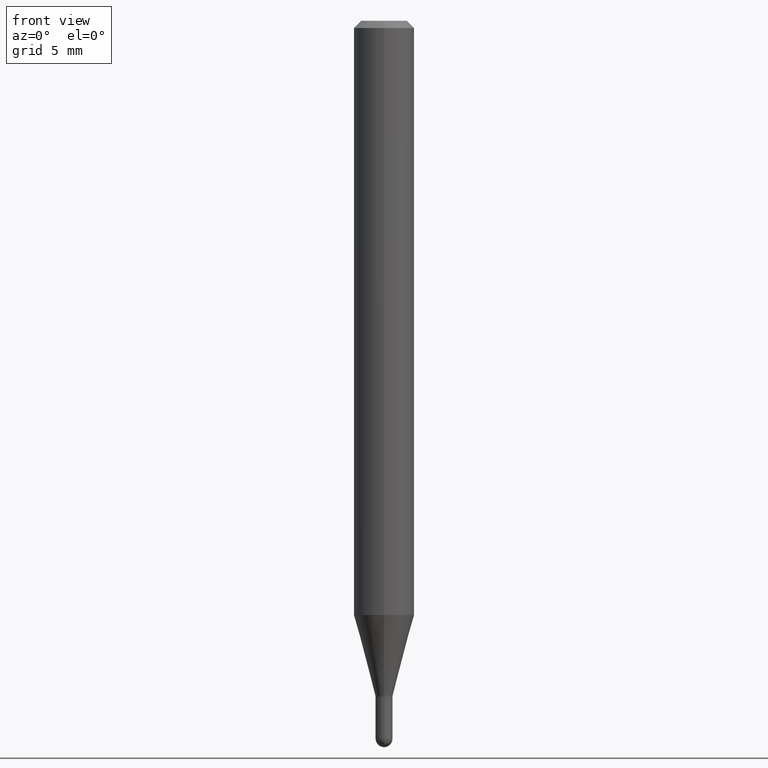
[diagram: clean part render]
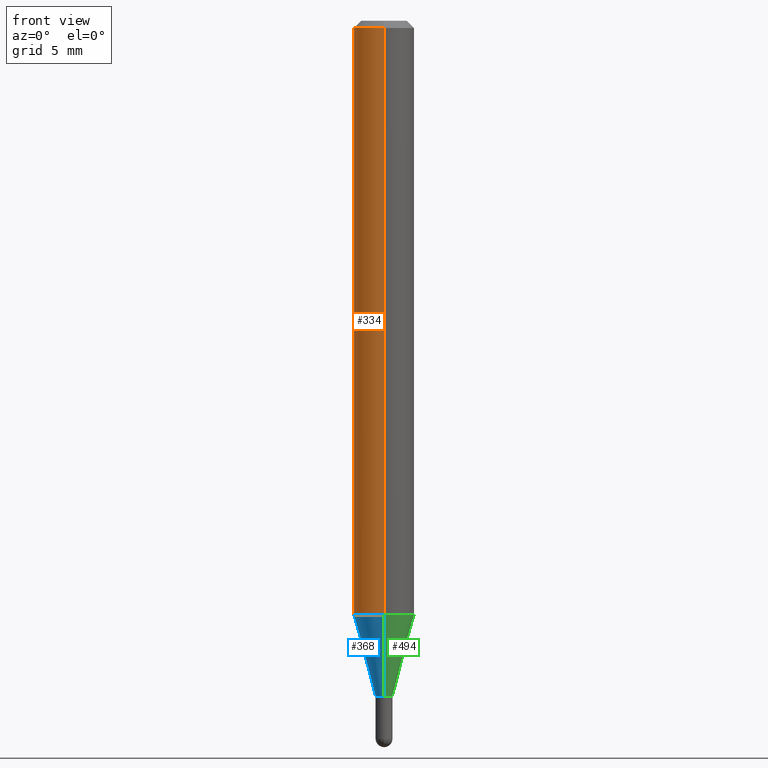
[diagram: same view with three faces highlighted in distinct colors, each labeled with its STEP entity id]
A machine part, front view with three faces highlighted in distinct colors.
Their STEP definitions:

[orange] entity #334 — the highlighted cylindrical surface (edge-blend (fillet) strip) has radius 1.5875 mm, axis along (-0, 0, 1).
#18 = DIRECTION ( 'NONE',  ( -6.982962677686265922E-15, -1.000000000000000000, 3.483106191921935554E-15 ) ) ;
#19 = VECTOR ( 'NONE', #367, 39.37007874015748143 ) ;
#28 = CARTESIAN_POINT ( 'NONE',  ( 4.440892098500625669E-16, 0.06250000000000000000, -2.182172866283536098E-16 ) ) ;
#39 = DIRECTION ( 'NONE',  ( -2.445472125040297483E-29, 3.491476586053657757E-15, 1.000000000000000000 ) ) ;
#40 = VERTEX_POINT ( 'NONE', #465 ) ;
#58 = DIRECTION ( 'NONE',  ( -2.445472125040297483E-29, 3.491476586053657757E-15, 1.000000000000000000 ) ) ;
#62 = AXIS2_PLACEMENT_3D ( 'NONE', #199, #39, #429 ) ;
#65 = FACE_OUTER_BOUND ( 'NONE', #274, .T. ) ;
#68 = DIRECTION ( 'NONE',  ( -6.982962677686265922E-15, -1.000000000000000000, 3.491476586053657757E-15 ) ) ;
#95 = CARTESIAN_POINT ( 'NONE',  ( 3.668208187560462655E-31, -5.237214879080509612E-17, -0.01500000000000006710 ) ) ;
#102 = VECTOR ( 'NONE', #335, 39.37007874015748143 ) ;
#127 = LINE ( 'NONE', #285, #19 ) ;
#138 = CYLINDRICAL_SURFACE ( 'NONE', #263, 0.06250000000000000000 ) ;
#149 = ORIENTED_EDGE ( 'NONE', *, *, #172, .F. ) ;
#152 = EDGE_CURVE ( 'NONE', #40, #416, #127, .T. ) ;
#172 = EDGE_CURVE ( 'NONE', #454, #416, #345, .T. ) ;
#199 = CARTESIAN_POINT ( 'NONE',  ( 3.000735434569753692E-29, -4.284243276978344601E-15, -1.227057713659404747 ) ) ;
#214 = LINE ( 'NONE', #28, #102 ) ;
#221 = DIRECTION ( 'NONE',  ( -2.445472125040297483E-29, 3.491476586053657757E-15, 1.000000000000000000 ) ) ;
#225 = CARTESIAN_POINT ( 'NONE',  ( 4.440892098500928887E-16, 0.06249999999999995837, -0.01500000000000028394 ) ) ;
#263 = AXIS2_PLACEMENT_3D ( 'NONE', #419, #221, #68 ) ;
#274 = EDGE_LOOP ( 'NONE', ( #316, #275, #500, #149 ) ) ;
#275 = ORIENTED_EDGE ( 'NONE', *, *, #433, .T. ) ;
#276 = EDGE_CURVE ( 'NONE', #388, #454, #214, .T. ) ;
#285 = CARTESIAN_POINT ( 'NONE',  ( -4.364351673553916201E-16, -0.06250000000000000000, 2.182172866283536098E-16 ) ) ;
#316 = ORIENTED_EDGE ( 'NONE', *, *, #276, .F. ) ;
#334 = ADVANCED_FACE ( 'NONE', ( #65 ), #138, .T. ) ;
#335 = DIRECTION ( 'NONE',  ( -2.445472125040297483E-29, 3.491476586053657757E-15, 1.000000000000000000 ) ) ;
#345 = CIRCLE ( 'NONE', #381, 0.06250000000000000000 ) ;
#367 = DIRECTION ( 'NONE',  ( -2.445472125040297483E-29, 3.491476586053657757E-15, 1.000000000000000000 ) ) ;
#381 = AXIS2_PLACEMENT_3D ( 'NONE', #95, #58, #18 ) ;
#382 = CIRCLE ( 'NONE', #62, 0.06250000000000000000 ) ;
#388 = VERTEX_POINT ( 'NONE', #449 ) ;
#416 = VERTEX_POINT ( 'NONE', #431 ) ;
#419 = CARTESIAN_POINT ( 'NONE',  ( 0.000000000000000000, 0.000000000000000000, 0.000000000000000000 ) ) ;
#429 = DIRECTION ( 'NONE',  ( -6.982962677686265922E-15, -1.000000000000000000, 4.370956789862821150E-15 ) ) ;
#431 = CARTESIAN_POINT ( 'NONE',  ( -4.364351673553912750E-16, -0.06250000000000005551, -0.01499999999999984852 ) ) ;
#433 = EDGE_CURVE ( 'NONE', #388, #40, #382, .T. ) ;
#449 = CARTESIAN_POINT ( 'NONE',  ( 4.440892098500924943E-16, 0.06249999999999569789, -1.227057713659404969 ) ) ;
#454 = VERTEX_POINT ( 'NONE', #225 ) ;
#465 = CARTESIAN_POINT ( 'NONE',  ( -4.364351673553617913E-16, -0.06250000000000430211, -1.227057713659404525 ) ) ;
#500 = ORIENTED_EDGE ( 'NONE', *, *, #152, .T. ) ;

[blue] entity #368 — the highlighted conical surface has half-angle 15 deg.
#39 = DIRECTION ( 'NONE',  ( -2.445472125040297483E-29, 3.491476586053657757E-15, 1.000000000000000000 ) ) ;
#40 = VERTEX_POINT ( 'NONE', #465 ) ;
#41 = CARTESIAN_POINT ( 'NONE',  ( 3.411433614431215021E-29, -4.870609837544852369E-15, -1.395000000000000018 ) ) ;
#43 = DIRECTION ( 'NONE',  ( -2.445472125040297483E-29, 3.491476586053657757E-15, 1.000000000000000000 ) ) ;
#62 = AXIS2_PLACEMENT_3D ( 'NONE', #199, #39, #429 ) ;
#64 = VERTEX_POINT ( 'NONE', #326 ) ;
#77 = ORIENTED_EDGE ( 'NONE', *, *, #425, .T. ) ;
#79 = DIRECTION ( 'NONE',  ( -6.982962677686265133E-15, -1.000000000000000000, 0.000000000000000000 ) ) ;
#87 = AXIS2_PLACEMENT_3D ( 'NONE', #99, #252, #140 ) ;
#99 = CARTESIAN_POINT ( 'NONE',  ( 3.411433614431215021E-29, -4.870609837544852369E-15, -1.395000000000000018 ) ) ;
#107 = FACE_OUTER_BOUND ( 'NONE', #340, .T. ) ;
#123 = ORIENTED_EDGE ( 'NONE', *, *, #185, .T. ) ;
#128 = VECTOR ( 'NONE', #438, 39.37007874015748143 ) ;
#140 = DIRECTION ( 'NONE',  ( -6.982962677686265133E-15, -1.000000000000000000, 0.000000000000000000 ) ) ;
#144 = ORIENTED_EDGE ( 'NONE', *, *, #433, .F. ) ;
#159 = CARTESIAN_POINT ( 'NONE',  ( -1.222018468594731037E-16, -0.01750000000000452235, -1.395000000000000018 ) ) ;
#179 = DIRECTION ( 'NONE',  ( 1.839019923739650408E-15, 0.2588190451025319527, 0.9659258262890650926 ) ) ;
#185 = EDGE_CURVE ( 'NONE', #418, #40, #360, .T. ) ;
#199 = CARTESIAN_POINT ( 'NONE',  ( 3.000735434569753692E-29, -4.284243276978344601E-15, -1.227057713659404747 ) ) ;
#239 = CARTESIAN_POINT ( 'NONE',  ( -1.222018468594731037E-16, -0.01750000000000452235, -1.395000000000000018 ) ) ;
#240 = CIRCLE ( 'NONE', #357, 0.01749999999999965472 ) ;
#252 = DIRECTION ( 'NONE',  ( -2.445472125040297483E-29, 3.491476586053657757E-15, 1.000000000000000000 ) ) ;
#273 = EDGE_CURVE ( 'NONE', #64, #388, #417, .T. ) ;
#320 = VECTOR ( 'NONE', #179, 39.37007874015748854 ) ;
#326 = CARTESIAN_POINT ( 'NONE',  ( 2.842170943040709938E-16, 0.01749999999999478362, -1.395000000000000018 ) ) ;
#340 = EDGE_LOOP ( 'NONE', ( #380, #77, #123, #144 ) ) ;
#357 = AXIS2_PLACEMENT_3D ( 'NONE', #41, #43, #79 ) ;
#360 = LINE ( 'NONE', #239, #128 ) ;
#368 = ADVANCED_FACE ( 'NONE', ( #107 ), #421, .T. ) ;
#380 = ORIENTED_EDGE ( 'NONE', *, *, #273, .F. ) ;
#382 = CIRCLE ( 'NONE', #62, 0.06250000000000000000 ) ;
#388 = VERTEX_POINT ( 'NONE', #449 ) ;
#417 = LINE ( 'NONE', #447, #320 ) ;
#418 = VERTEX_POINT ( 'NONE', #159 ) ;
#421 = CONICAL_SURFACE ( 'NONE', #87, 0.01749999999999965472, 0.2617993877991575680 ) ;
#425 = EDGE_CURVE ( 'NONE', #64, #418, #240, .T. ) ;
#429 = DIRECTION ( 'NONE',  ( -6.982962677686265922E-15, -1.000000000000000000, 4.370956789862821150E-15 ) ) ;
#433 = EDGE_CURVE ( 'NONE', #388, #40, #382, .T. ) ;
#438 = DIRECTION ( 'NONE',  ( -1.807323732225379443E-15, -0.2588190451025252359, 0.9659258262890670910 ) ) ;
#447 = CARTESIAN_POINT ( 'NONE',  ( 1.243449787580491728E-16, 0.01749999999999478362, -1.395000000000000018 ) ) ;
#449 = CARTESIAN_POINT ( 'NONE',  ( 4.440892098500924943E-16, 0.06249999999999569789, -1.227057713659404969 ) ) ;
#465 = CARTESIAN_POINT ( 'NONE',  ( -4.364351673553617913E-16, -0.06250000000000430211, -1.227057713659404525 ) ) ;

[green] entity #494 — the highlighted conical surface has half-angle 15 deg.
#20 = AXIS2_PLACEMENT_3D ( 'NONE', #352, #422, #301 ) ;
#34 = FACE_OUTER_BOUND ( 'NONE', #256, .T. ) ;
#40 = VERTEX_POINT ( 'NONE', #465 ) ;
#49 = EDGE_CURVE ( 'NONE', #418, #64, #96, .T. ) ;
#64 = VERTEX_POINT ( 'NONE', #326 ) ;
#76 = CIRCLE ( 'NONE', #212, 0.06250000000000000000 ) ;
#80 = ORIENTED_EDGE ( 'NONE', *, *, #81, .F. ) ;
#81 = EDGE_CURVE ( 'NONE', #40, #388, #76, .T. ) ;
#96 = CIRCLE ( 'NONE', #286, 0.01749999999999965472 ) ;
#120 = ORIENTED_EDGE ( 'NONE', *, *, #49, .T. ) ;
#128 = VECTOR ( 'NONE', #438, 39.37007874015748143 ) ;
#133 = CARTESIAN_POINT ( 'NONE',  ( 3.000735434569753692E-29, -4.284243276978344601E-15, -1.227057713659404747 ) ) ;
#151 = ORIENTED_EDGE ( 'NONE', *, *, #185, .F. ) ;
#159 = CARTESIAN_POINT ( 'NONE',  ( -1.222018468594731037E-16, -0.01750000000000452235, -1.395000000000000018 ) ) ;
#179 = DIRECTION ( 'NONE',  ( 1.839019923739650408E-15, 0.2588190451025319527, 0.9659258262890650926 ) ) ;
#185 = EDGE_CURVE ( 'NONE', #418, #40, #360, .T. ) ;
#196 = ORIENTED_EDGE ( 'NONE', *, *, #273, .T. ) ;
#212 = AXIS2_PLACEMENT_3D ( 'NONE', #133, #325, #323 ) ;
#230 = DIRECTION ( 'NONE',  ( -2.445472125040297483E-29, 3.491476586053657757E-15, 1.000000000000000000 ) ) ;
#239 = CARTESIAN_POINT ( 'NONE',  ( -1.222018468594731037E-16, -0.01750000000000452235, -1.395000000000000018 ) ) ;
#256 = EDGE_LOOP ( 'NONE', ( #120, #196, #80, #151 ) ) ;
#273 = EDGE_CURVE ( 'NONE', #64, #388, #417, .T. ) ;
#286 = AXIS2_PLACEMENT_3D ( 'NONE', #426, #230, #484 ) ;
#301 = DIRECTION ( 'NONE',  ( -6.982962677686265133E-15, -1.000000000000000000, 0.000000000000000000 ) ) ;
#320 = VECTOR ( 'NONE', #179, 39.37007874015748854 ) ;
#323 = DIRECTION ( 'NONE',  ( -6.982962677686265922E-15, -1.000000000000000000, 4.370956789862821150E-15 ) ) ;
#325 = DIRECTION ( 'NONE',  ( -2.445472125040297483E-29, 3.491476586053657757E-15, 1.000000000000000000 ) ) ;
#326 = CARTESIAN_POINT ( 'NONE',  ( 2.842170943040709938E-16, 0.01749999999999478362, -1.395000000000000018 ) ) ;
#352 = CARTESIAN_POINT ( 'NONE',  ( 3.411433614431215021E-29, -4.870609837544852369E-15, -1.395000000000000018 ) ) ;
#360 = LINE ( 'NONE', #239, #128 ) ;
#388 = VERTEX_POINT ( 'NONE', #449 ) ;
#398 = CONICAL_SURFACE ( 'NONE', #20, 0.01749999999999965472, 0.2617993877991575680 ) ;
#417 = LINE ( 'NONE', #447, #320 ) ;
#418 = VERTEX_POINT ( 'NONE', #159 ) ;
#422 = DIRECTION ( 'NONE',  ( -2.445472125040297483E-29, 3.491476586053657757E-15, 1.000000000000000000 ) ) ;
#426 = CARTESIAN_POINT ( 'NONE',  ( 3.411433614431215021E-29, -4.870609837544852369E-15, -1.395000000000000018 ) ) ;
#438 = DIRECTION ( 'NONE',  ( -1.807323732225379443E-15, -0.2588190451025252359, 0.9659258262890670910 ) ) ;
#447 = CARTESIAN_POINT ( 'NONE',  ( 1.243449787580491728E-16, 0.01749999999999478362, -1.395000000000000018 ) ) ;
#449 = CARTESIAN_POINT ( 'NONE',  ( 4.440892098500924943E-16, 0.06249999999999569789, -1.227057713659404969 ) ) ;
#465 = CARTESIAN_POINT ( 'NONE',  ( -4.364351673553617913E-16, -0.06250000000000430211, -1.227057713659404525 ) ) ;
#484 = DIRECTION ( 'NONE',  ( -6.982962677686265133E-15, -1.000000000000000000, 0.000000000000000000 ) ) ;
#494 = ADVANCED_FACE ( 'NONE', ( #34 ), #398, .T. ) ;